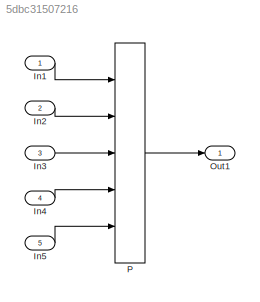
MODEL slx_5dbc31507216
KIND model
CONFIG AbsTol = auto
CONFIG EnableMultiTasking = off
CONFIG FixedStep = auto
CONFIG MaxStep = auto
CONFIG MinStep = auto
CONFIG RelTol = 1e-3
CONFIG SampleTimeConstraint = Unconstrained
CONFIG Solver = FixedStepDiscrete
CONFIG SolverName = FixedStepDiscrete
CONFIG StartTime = 0.0
CONFIG StopTime = 10.0
BLOCK [Inport] In1
  IconDisplay = Port number
  OutDataTypeStr = uint16
  OutMax = 127
  OutMin = 0
  PortDimensions = 1
BLOCK [Inport] In2
  IconDisplay = Port number
  OutDataTypeStr = uint16
  OutMax = 127
  OutMin = 0
  Port = 2
BLOCK [Inport] In3
  IconDisplay = Port number
  OutDataTypeStr = uint16
  OutMax = 127
  OutMin = 0
  Port = 3
BLOCK [Inport] In4
  IconDisplay = Port number
  OutDataTypeStr = uint16
  OutMax = 127
  OutMin = 0
  Port = 4
BLOCK [Inport] In5
  IconDisplay = Port number
  OutDataTypeStr = uint16
  OutMax = 127
  OutMin = 0
  Port = 5
BLOCK [Outport] Out1
  IconDisplay = Port number
BLOCK [Lookup_n-D] P
  BreakpointsForDimension1 = [49.7883202308942;52.545593266823]
  BreakpointsForDimension1DataTypeStr = uint8
  BreakpointsForDimension2 = [13.1724200537824;16.6042894722249;26.6818040792021;34.9361207449651;102.051615338463]
  BreakpointsForDimension2DataTypeStr = uint8
  BreakpointsForDimension3 = [28.9960950722709;62.130377382721;90.9645774641254]
  BreakpointsForDimension3DataTypeStr = uint8
  BreakpointsForDimension4 = [27.9367975156089;93.3623465556457]
  BreakpointsForDimension4DataTypeStr = uint8
  BreakpointsForDimension5 = [17.2229818359364;62.5382240354051;95.0077930063622]
  BreakpointsForDimension5DataTypeStr = uint8
  ExtrapMethod = Clip
  InternalRulePriority = Speed
  InterpMethod = Flat
  NumberOfTableDimensions = 5
  OutDataTypeStr = uint8
  Ports = [5, 1]
  RndMeth = Round
  SaturateOnIntegerOverflow = on
  Table = reshape(repmat([4 5 6 7 8;16 19 20 21 22;10 18 23 24 25],6,2),[2,5,3,2,3])
  TableDataTypeStr = Inherit: Inherit from 'Table data'
LINE In1:1 -> P:1
LINE In2:1 -> P:2
LINE In3:1 -> P:3
LINE In4:1 -> P:4
LINE In5:1 -> P:5
LINE P:1 -> Out1:1
